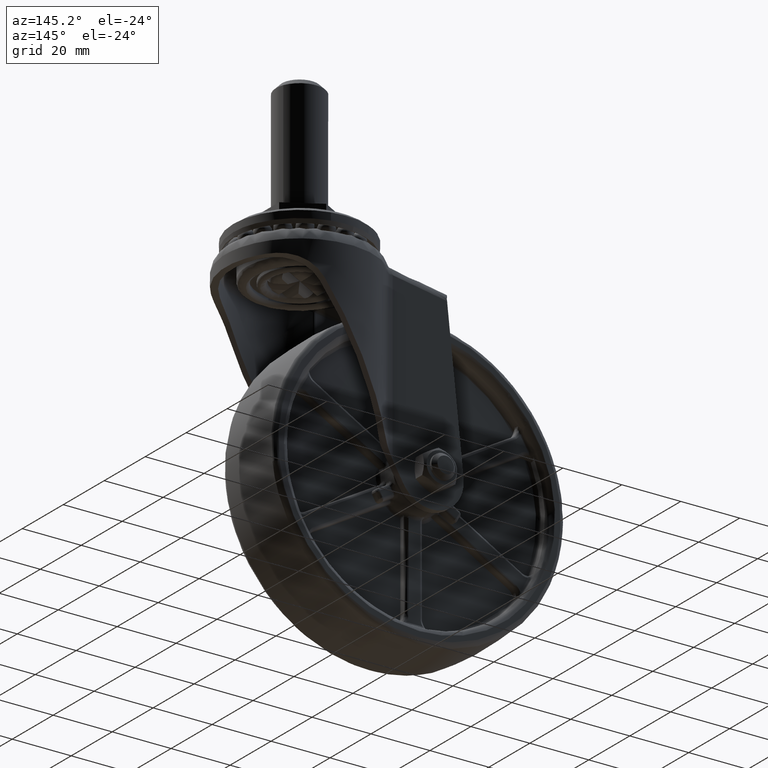
[diagram: clean part render]
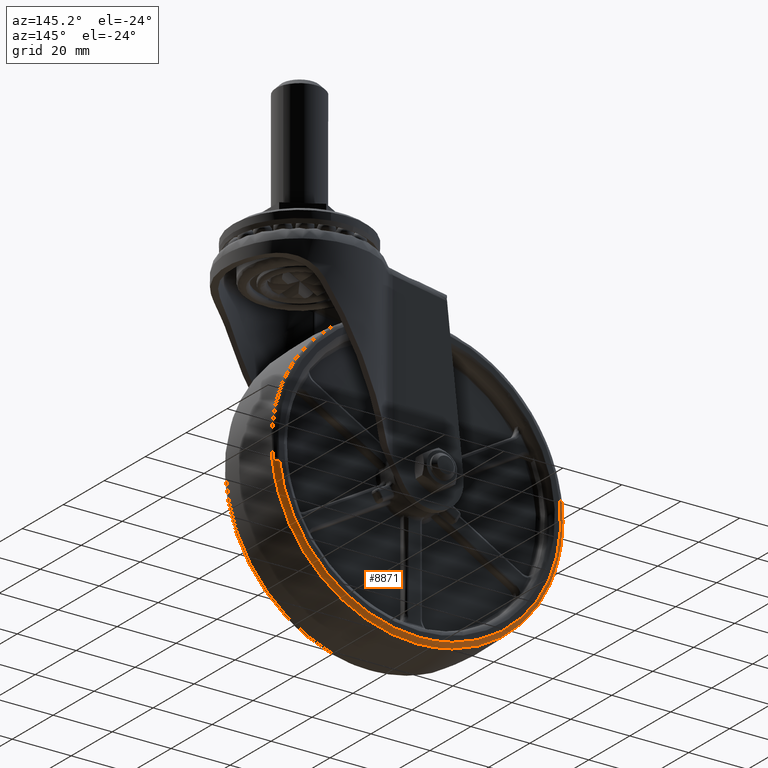
[diagram: same view with one face highlighted and labeled with its STEP entity id]
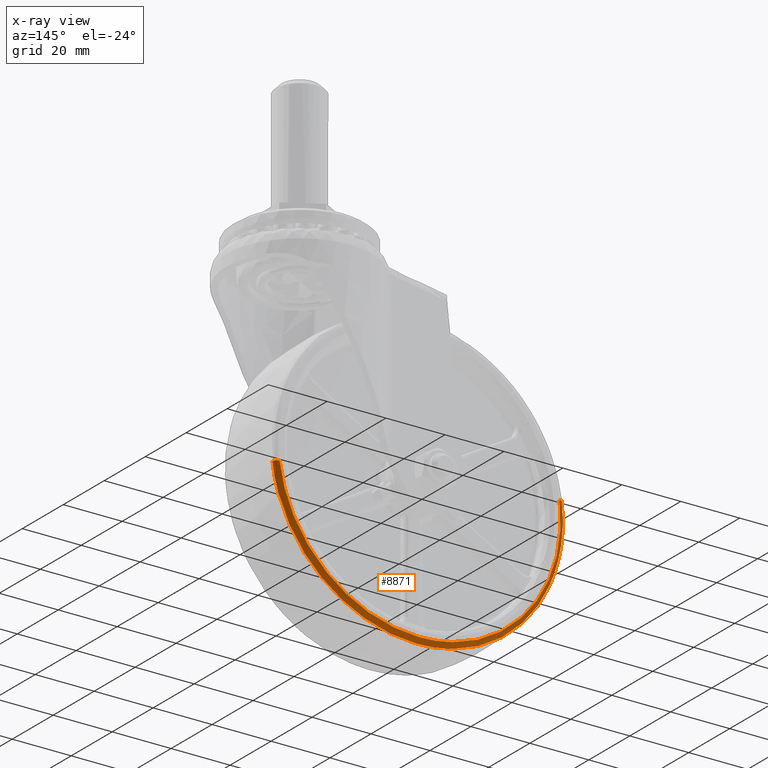
[diagram: x-ray of the same camera — body ghosted, the highlighted face saturated]
A machine part, auxiliary view. The second image highlights one B-rep face of the part: STEP entity #8871.
The next image is the same camera in x-ray: the body ghosted, the highlighted face saturated — about 0% of this face is hidden behind the body in this view.
In plain terms, the highlighted face is a freeform B-spline surface patch.
Its self-contained STEP definition (entity closure, byte-faithful):
#8672=CARTESIAN_POINT('',(48.985143232747767,11.167500819042701,-6.188246697697730));
#8673=VERTEX_POINT('',#8672);
#8691=CARTESIAN_POINT('',(47.506279502947741,12.500000000000000,-6.001422762307898));
#8692=VERTEX_POINT('',#8691);
#8693=CARTESIAN_POINT('',(47.506279502947741,12.500000000000000,-6.001422762307898));
#8694=CARTESIAN_POINT('',(48.836591659919179,12.499999953967587,-6.169480269824053));
#8695=CARTESIAN_POINT('',(48.985143232747788,11.167500819042704,-6.188246697697730));
#8703=(BOUNDED_CURVE()B_SPLINE_CURVE(2,(#8693,#8694,#8695),.UNSPECIFIED.,.F.,.U.)B_SPLINE_CURVE_WITH_KNOTS((3,3),(-1.709105695621258,-0.289619866583328),.UNSPECIFIED.)CURVE()GEOMETRIC_REPRESENTATION_ITEM()RATIONAL_B_SPLINE_CURVE((0.888415785714702,0.662503080968434,0.888821806553585))REPRESENTATION_ITEM(''));
#8704=EDGE_CURVE('',#8692,#8673,#8703,.T.);
#8723=CARTESIAN_POINT('',(-47.506279502947741,12.500000000000000,6.001454762307692));
#8724=VERTEX_POINT('',#8723);
#8738=CARTESIAN_POINT('',(-48.985144623581988,11.167498976474370,6.188278873435198));
#8739=VERTEX_POINT('',#8738);
#8740=CARTESIAN_POINT('',(-47.506279502947748,12.500000000000000,6.001454762307692));
#8741=CARTESIAN_POINT('',(-48.836593434006311,12.499999953967523,6.169512493943171));
#8742=CARTESIAN_POINT('',(-48.985144623581995,11.167498976474370,6.188278873435198));
#8750=(BOUNDED_CURVE()B_SPLINE_CURVE(2,(#8740,#8741,#8742),.UNSPECIFIED.,.F.,.U.)B_SPLINE_CURVE_WITH_KNOTS((3,3),(-1.709105695621254,-0.289618454943386),.UNSPECIFIED.)CURVE()GEOMETRIC_REPRESENTATION_ITEM()RATIONAL_B_SPLINE_CURVE((0.888415785714701,0.662502856304412,0.888822256689633))REPRESENTATION_ITEM(''));
#8751=EDGE_CURVE('',#8724,#8739,#8750,.T.);
#8769=CARTESIAN_POINT('',(-47.408522953281000,12.496760218376368,5.989105237735910));
#8770=CARTESIAN_POINT('',(-53.397612191017004,12.496760218376366,-41.419417715545080));
#8771=CARTESIAN_POINT('',(-5.989089237736013,12.496760218376368,-47.408506953281091));
#8772=CARTESIAN_POINT('',(41.419433715544990,12.496760218376366,-53.397596191017101));
#8773=CARTESIAN_POINT('',(47.408522953280993,12.496760218376368,-5.989073237736115));
#8774=CARTESIAN_POINT('',(-48.922786829479200,12.597238294628211,6.180401252019424));
#8775=CARTESIAN_POINT('',(-55.103172081498712,12.597238294628209,-42.742385577459778));
#8776=CARTESIAN_POINT('',(-6.180385252019525,12.597238294628211,-48.922770829479305));
#8777=CARTESIAN_POINT('',(42.742401577459660,12.597238294628209,-55.103156081498817));
#8778=CARTESIAN_POINT('',(48.922786829479186,12.597238294628211,-6.180369252019627));
#8779=CARTESIAN_POINT('',(-48.992863982475342,11.069267118149215,6.189254055200698));
#8780=CARTESIAN_POINT('',(-55.182102037676145,11.069267118149218,-42.803609927274643));
#8781=CARTESIAN_POINT('',(-6.189238055200801,11.069267118149215,-48.992847982475439));
#8782=CARTESIAN_POINT('',(42.803625927274538,11.069267118149218,-55.182086037676250));
#8783=CARTESIAN_POINT('',(48.992863982475342,11.069267118149215,-6.189222055200903));
#8791=(BOUNDED_SURFACE()B_SPLINE_SURFACE(2,2,((#8769,#8774,#8779),(#8770,#8775,#8780),(#8771,#8776,#8781),(#8772,#8777,#8782),(#8773,#8778,#8783)),.UNSPECIFIED.,.F.,.F.,.U.)B_SPLINE_SURFACE_WITH_KNOTS((3,2,3),(3,3),(0.0,81.819203743898683,163.638407487797390),(0.0,2.519693241193959),.UNSPECIFIED.)GEOMETRIC_REPRESENTATION_ITEM()RATIONAL_B_SPLINE_SURFACE(((0.912113135269064,0.638785278403264,0.912560062691777),(0.644961383158078,0.451689402081085,0.645277408569376),(0.912113135269064,0.638785278403264,0.912560062691777),(0.644961383158078,0.451689402081085,0.645277408569376),(0.912113135269064,0.638785278403264,0.912560062691777)))REPRESENTATION_ITEM('')SURFACE());
#8792=CARTESIAN_POINT('',(0.0,11.167512474098420,-49.374459177890202));
#8793=VERTEX_POINT('',#8792);
#8794=CARTESIAN_POINT('',(0.0,11.167512474098420,-49.374459177890202));
#8795=CARTESIAN_POINT('',(43.529453803987089,11.167512474098420,-49.374459177890195));
#8796=CARTESIAN_POINT('',(48.985143232747774,11.167500819042704,-6.188246697697731));
#8804=(BOUNDED_CURVE()B_SPLINE_CURVE(2,(#8794,#8795,#8796),.UNSPECIFIED.,.F.,.U.)B_SPLINE_CURVE_WITH_KNOTS((3,3),(0.0,0.228321250714427),.UNSPECIFIED.)CURVE()GEOMETRIC_REPRESENTATION_ITEM()RATIONAL_B_SPLINE_CURVE((1.0,0.732505015818953,0.953608346422326))REPRESENTATION_ITEM(''));
#8805=EDGE_CURVE('',#8793,#8673,#8804,.T.);
#8806=ORIENTED_EDGE('',*,*,#8805,.F.);
#8807=CARTESIAN_POINT('',(-49.044248125281300,11.167499099310250,5.700959768865777));
#8808=VERTEX_POINT('',#8807);
#8809=CARTESIAN_POINT('',(-49.044248125281300,11.167499099310259,5.700959768865777));
#8810=CARTESIAN_POINT('',(-49.374477480170178,11.167499444260280,2.860052349725892));
#8811=CARTESIAN_POINT('',(-49.374477411724662,11.167499831630240,0.000016259662657));
#8812=CARTESIAN_POINT('',(-49.374476230109494,11.167506519024325,-49.374459055579351));
#8813=CARTESIAN_POINT('',(0.0,11.167512474098420,-49.374459177890202));
#8821=(BOUNDED_CURVE()B_SPLINE_CURVE(2,(#8809,#8810,#8811,#8812,#8813),.UNSPECIFIED.,.F.,.U.)B_SPLINE_CURVE_WITH_KNOTS((3,2,3),(0.730000145654996,0.750000000000000,1.0),.UNSPECIFIED.)CURVE()GEOMETRIC_REPRESENTATION_ITEM()RATIONAL_B_SPLINE_CURVE((0.956886404875201,0.976568713140366,1.0,0.707106781186547,1.0))REPRESENTATION_ITEM(''));
#8822=EDGE_CURVE('',#8808,#8793,#8821,.T.);
#8823=ORIENTED_EDGE('',*,*,#8822,.F.);
#8824=CARTESIAN_POINT('',(-48.985144623581995,11.167498976474370,6.188278873435198));
#8825=CARTESIAN_POINT('',(-49.015907853489985,11.167499061709089,5.944766252860019));
#8826=CARTESIAN_POINT('',(-49.044248125281300,11.167499099310259,5.700959768865777));
#8834=(BOUNDED_CURVE()B_SPLINE_CURVE(2,(#8824,#8825,#8826),.UNSPECIFIED.,.F.,.U.)B_SPLINE_CURVE_WITH_KNOTS((3,3),(0.728321256474871,0.730000145654996),.UNSPECIFIED.)CURVE()GEOMETRIC_REPRESENTATION_ITEM()RATIONAL_B_SPLINE_CURVE((0.953608357579005,0.955234172123090,0.956886404875201))REPRESENTATION_ITEM(''));
#8835=EDGE_CURVE('',#8739,#8808,#8834,.T.);
#8836=ORIENTED_EDGE('',*,*,#8835,.F.);
#8837=ORIENTED_EDGE('',*,*,#8751,.F.);
#8838=CARTESIAN_POINT('',(0.0,12.500000000000000,-47.883841999999987));
#8839=VERTEX_POINT('',#8838);
#8840=CARTESIAN_POINT('',(-47.506279502947741,12.500000000000007,6.001454762307692));
#8841=CARTESIAN_POINT('',(-47.883857999999897,12.499999999999998,3.012612993302605));
#8842=CARTESIAN_POINT('',(-47.883857999999897,12.500000000000000,0.000015999999905));
#8843=CARTESIAN_POINT('',(-47.883857999999897,12.500000000000000,-47.883842000000008));
#8844=CARTESIAN_POINT('',(0.0,12.500000000000000,-47.883841999999987));
#8852=(BOUNDED_CURVE()B_SPLINE_CURVE(2,(#8840,#8841,#8842,#8843,#8844),.UNSPECIFIED.,.F.,.U.)B_SPLINE_CURVE_WITH_KNOTS((3,2,3),(0.728321256478659,0.750000000000000,1.0),.UNSPECIFIED.)CURVE()GEOMETRIC_REPRESENTATION_ITEM()RATIONAL_B_SPLINE_CURVE((0.953608357586340,0.974601772120812,1.0,0.707106781186548,1.0))REPRESENTATION_ITEM(''));
#8853=EDGE_CURVE('',#8724,#8839,#8852,.T.);
#8854=ORIENTED_EDGE('',*,*,#8853,.T.);
#8855=CARTESIAN_POINT('',(0.0,12.500000000000000,-47.883841999999987));
#8856=CARTESIAN_POINT('',(42.215299486149917,12.500000000000000,-47.883841999999994));
#8857=CARTESIAN_POINT('',(47.506279502947741,12.499999999999998,-6.001422762307898));
#8865=(BOUNDED_CURVE()B_SPLINE_CURVE(2,(#8855,#8856,#8857),.UNSPECIFIED.,.F.,.U.)B_SPLINE_CURVE_WITH_KNOTS((3,3),(0.0,0.228321256478659),.UNSPECIFIED.)CURVE()GEOMETRIC_REPRESENTATION_ITEM()RATIONAL_B_SPLINE_CURVE((1.0,0.732505009065735,0.953608357586340))REPRESENTATION_ITEM(''));
#8866=EDGE_CURVE('',#8839,#8692,#8865,.T.);
#8867=ORIENTED_EDGE('',*,*,#8866,.T.);
#8868=ORIENTED_EDGE('',*,*,#8704,.T.);
#8869=EDGE_LOOP('',(#8806,#8823,#8836,#8837,#8854,#8867,#8868));
#8870=FACE_OUTER_BOUND('',#8869,.T.);
#8871=ADVANCED_FACE('',(#8870),#8791,.T.);